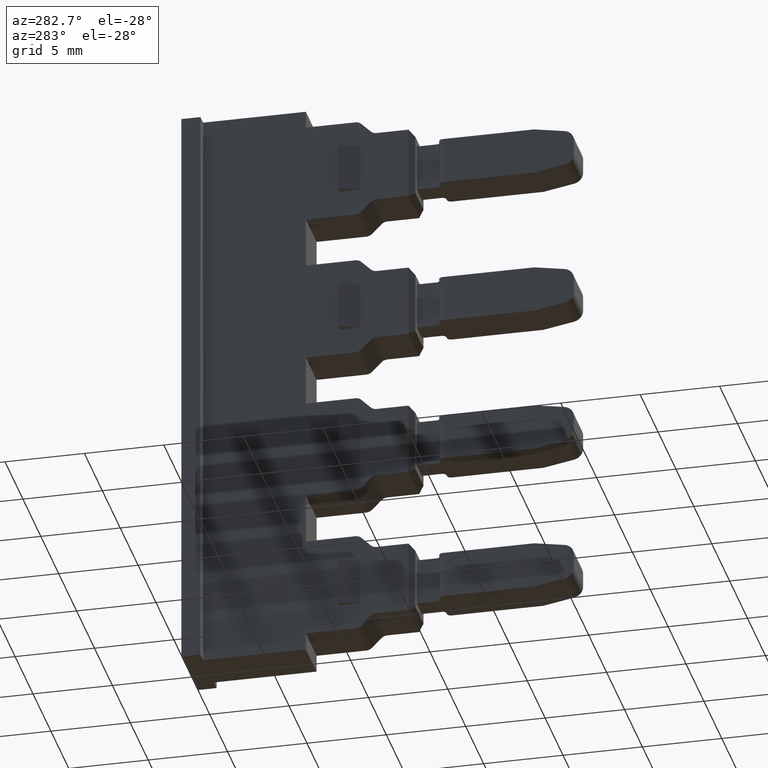
[diagram: clean part render]
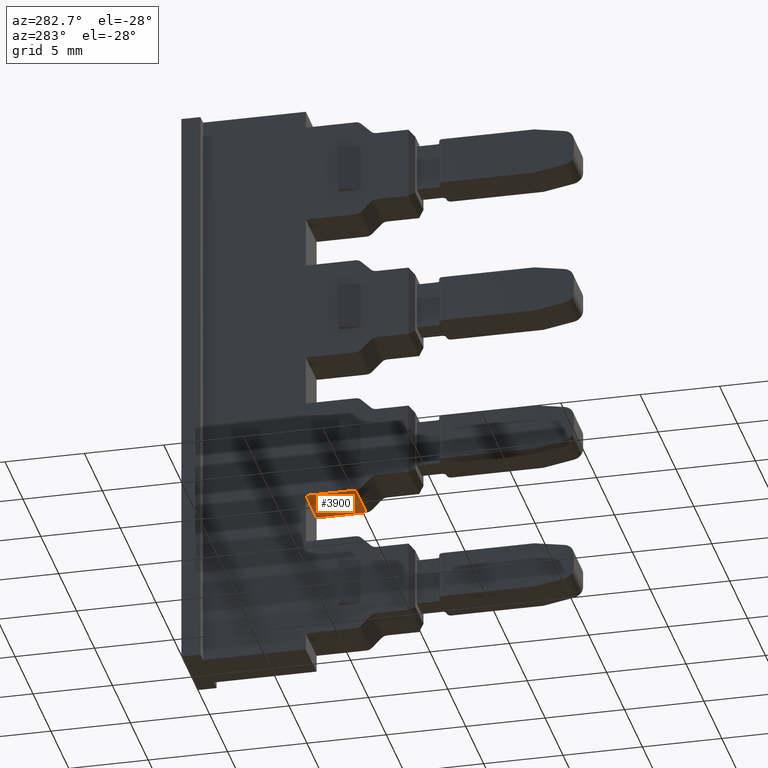
[diagram: same view with one face highlighted and labeled with its STEP entity id]
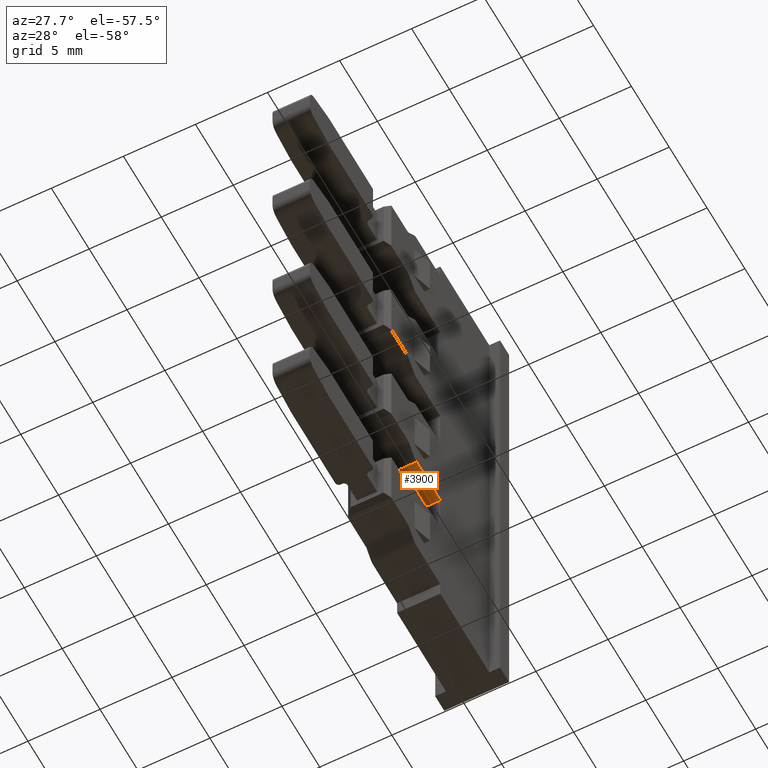
[diagram: same view with one face highlighted and labeled with its STEP entity id]
A machine part, auxiliary view. The second image highlights one B-rep face of the part: STEP entity #3900.
A second angle (auxiliary view) of the same face is appended — the face is thin or edge-on in the first view.
In plain terms, the highlighted planar face has unit normal (0, -0, -1).
Its self-contained STEP definition (entity closure, byte-faithful):
#539 = EDGE_LOOP ( 'NONE', ( #1147, #1194, #1145, #1171 ) ) ;
#1145 = ORIENTED_EDGE ( 'NONE', *, *, #3866, .T. ) ;
#1147 = ORIENTED_EDGE ( 'NONE', *, *, #3812, .T. ) ;
#1171 = ORIENTED_EDGE ( 'NONE', *, *, #3485, .T. ) ;
#1194 = ORIENTED_EDGE ( 'NONE', *, *, #3524, .T. ) ;
#1496 = VERTEX_POINT ( 'NONE', #1828 ) ;
#1505 = VERTEX_POINT ( 'NONE', #1796 ) ;
#1542 = VERTEX_POINT ( 'NONE', #1844 ) ;
#1549 = VERTEX_POINT ( 'NONE', #1887 ) ;
#1796 = CARTESIAN_POINT ( 'NONE',  ( 112.2279176201152800, 239.5101602475986300, 28.70663662139573400 ) ) ;
#1828 = CARTESIAN_POINT ( 'NONE',  ( 112.2279176201152200, 242.6435672046340500, 28.70663662139570600 ) ) ;
#1844 = CARTESIAN_POINT ( 'NONE',  ( 109.2279176201153300, 239.5101602475985800, 28.70663662139571300 ) ) ;
#1887 = CARTESIAN_POINT ( 'NONE',  ( 109.2279176201152600, 242.6435672046340500, 28.70663662139569900 ) ) ;
#2582 = LINE ( 'NONE', #2584, #5569 ) ;
#2584 = CARTESIAN_POINT ( 'NONE',  ( 112.2279176201152400, 239.5101602475979200, 28.70663662139573400 ) ) ;
#2600 = DIRECTION ( 'NONE',  ( -0.0000000000000000000, -1.000000000000000000, 8.857954295821063300E-015 ) ) ;
#2772 = CARTESIAN_POINT ( 'NONE',  ( 109.2279176201153300, 239.5101602475985500, 28.70663662139571300 ) ) ;
#2783 = LINE ( 'NONE', #2772, #5651 ) ;
#2799 = DIRECTION ( 'NONE',  ( -2.643655590711540000E-014, 1.000000000000000000, 0.0000000000000000000 ) ) ;
#2905 = PLANE ( 'NONE',  #5656 ) ;
#2930 = FACE_OUTER_BOUND ( 'NONE', #539, .T. ) ;
#2941 = CARTESIAN_POINT ( 'NONE',  ( 86.90330753495030100, 239.5101602475979200, 28.70663662139555300 ) ) ;
#2954 = DIRECTION ( 'NONE',  ( 0.0000000000000000000, 1.000000000000000000, -8.857954295821063300E-015 ) ) ;
#2959 = DIRECTION ( 'NONE',  ( 7.193572994224316300E-015, -8.857954295821063300E-015, -1.000000000000000000 ) ) ;
#3485 = EDGE_CURVE ( 'NONE', #1549, #1496, #4812, .T. ) ;
#3524 = EDGE_CURVE ( 'NONE', #1505, #1542, #4879, .T. ) ;
#3812 = EDGE_CURVE ( 'NONE', #1496, #1505, #2582, .T. ) ;
#3866 = EDGE_CURVE ( 'NONE', #1542, #1549, #2783, .T. ) ;
#3900 = ADVANCED_FACE ( 'NONE', ( #2930 ), #2905, .T. ) ;
#4776 = DIRECTION ( 'NONE',  ( 1.000000000000000000, 6.372034080649165700E-029, 7.193572994224316300E-015 ) ) ;
#4810 = CARTESIAN_POINT ( 'NONE',  ( 86.90330753495030100, 242.6435672046340800, 28.70663662139552500 ) ) ;
#4812 = LINE ( 'NONE', #4810, #5176 ) ;
#4879 = LINE ( 'NONE', #4886, #5256 ) ;
#4886 = CARTESIAN_POINT ( 'NONE',  ( 86.90330753495030100, 239.5101602475985800, 28.70663662139555300 ) ) ;
#4889 = DIRECTION ( 'NONE',  ( -1.000000000000000000, -6.372034080649165700E-029, -7.193572994224316300E-015 ) ) ;
#5176 = VECTOR ( 'NONE', #4776, 1000.000000000000000 ) ;
#5256 = VECTOR ( 'NONE', #4889, 1000.000000000000000 ) ;
#5569 = VECTOR ( 'NONE', #2600, 1000.000000000000000 ) ;
#5651 = VECTOR ( 'NONE', #2799, 1000.000000000000000 ) ;
#5656 = AXIS2_PLACEMENT_3D ( 'NONE', #2941, #2959, #2954 ) ;